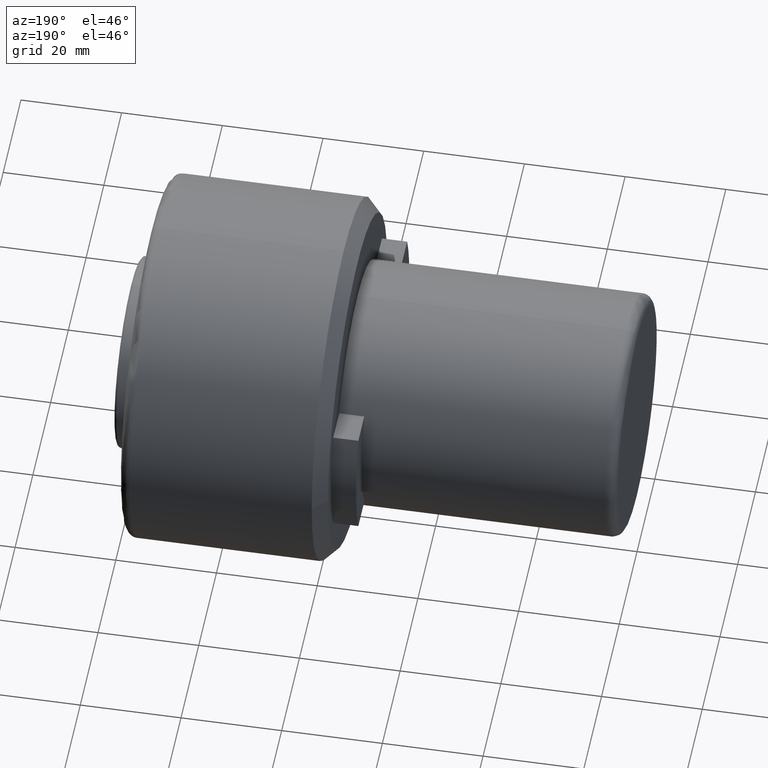
[diagram: clean part render]
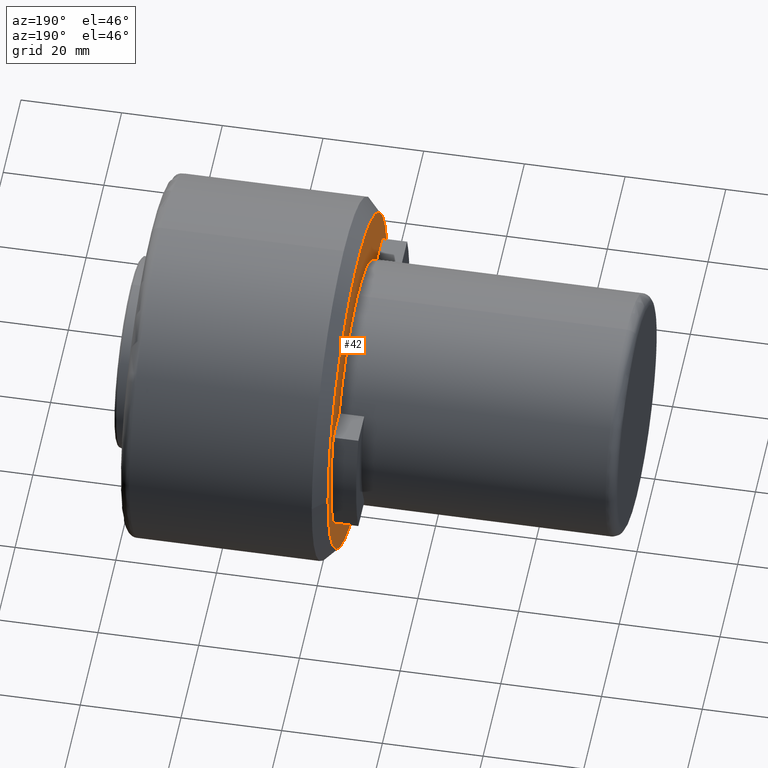
[diagram: same view with one face highlighted and labeled with its STEP entity id]
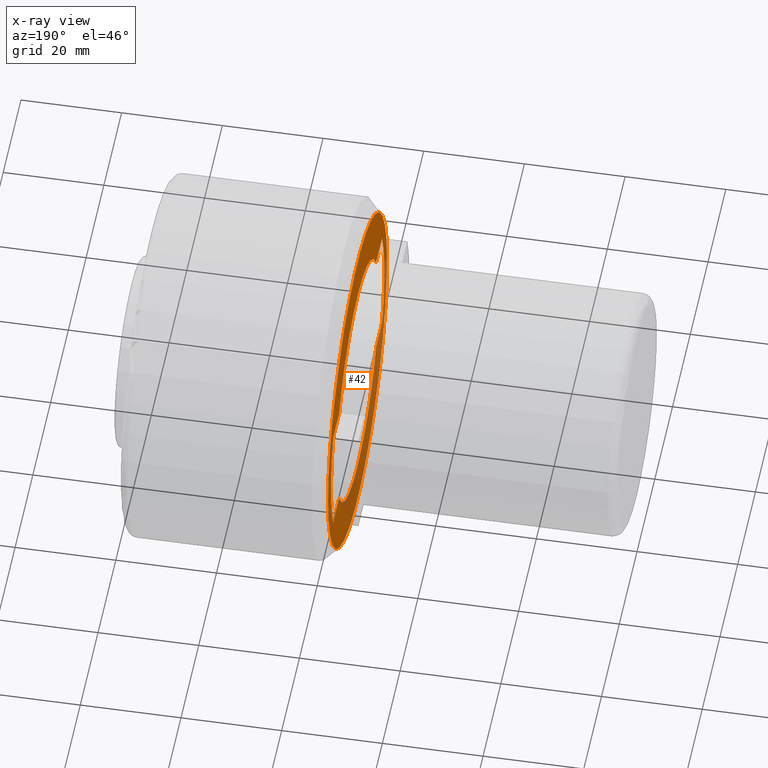
[diagram: x-ray of the same camera — body ghosted, the highlighted face saturated]
A machine part, auxiliary view. The second image highlights one B-rep face of the part: STEP entity #42.
The next image is the same camera in x-ray: the body ghosted, the highlighted face saturated — about 37% of this face is hidden behind the body in this view.
In plain terms, the highlighted planar face has unit normal (1, 0, 0).
Its self-contained STEP definition (entity closure, byte-faithful):
#2 = DIRECTION ( 'NONE',  ( 1.000000000000000000, 9.637352644315590300E-017, -0.0000000000000000000 ) ) ;
#12 = DIRECTION ( 'NONE',  ( 0.0000000000000000000, 1.000000000000000000, 0.0000000000000000000 ) ) ;
#24 = EDGE_CURVE ( 'NONE', #36, #367, #333, .T. ) ;
#36 = VERTEX_POINT ( 'NONE', #759 ) ;
#42 = ADVANCED_FACE ( 'NONE', ( #1199, #1172 ), #464, .F. ) ;
#55 = EDGE_CURVE ( 'NONE', #72, #617, #300, .T. ) ;
#72 = VERTEX_POINT ( 'NONE', #1146 ) ;
#87 = CARTESIAN_POINT ( 'NONE',  ( 55.50000000000000000, 3.677383230559753400E-031, 0.0000000000000000000 ) ) ;
#89 = ORIENTED_EDGE ( 'NONE', *, *, #105, .F. ) ;
#101 = CARTESIAN_POINT ( 'NONE',  ( 55.50000000000000000, -33.64900000000000100, -33.64900000000000100 ) ) ;
#105 = EDGE_CURVE ( 'NONE', #961, #72, #568, .T. ) ;
#153 = AXIS2_PLACEMENT_3D ( 'NONE', #988, #743, #355 ) ;
#154 = CARTESIAN_POINT ( 'NONE',  ( 55.49999999999999300, 0.0000000000000000000, 24.00000000000000400 ) ) ;
#162 = CARTESIAN_POINT ( 'NONE',  ( 55.49999999999999300, -33.24999999999999300, 4.240339542047711600E-015 ) ) ;
#166 = DIRECTION ( 'NONE',  ( -0.0000000000000000000, 1.000000000000000000, 0.0000000000000000000 ) ) ;
#183 = DIRECTION ( 'NONE',  ( 1.000000000000000000, 9.637352644315590300E-017, -0.0000000000000000000 ) ) ;
#186 = ORIENTED_EDGE ( 'NONE', *, *, #741, .F. ) ;
#198 = EDGE_CURVE ( 'NONE', #478, #1397, #779, .T. ) ;
#200 = DIRECTION ( 'NONE',  ( -1.000000000000000000, 0.0000000000000000000, -1.445602896647339200E-016 ) ) ;
#201 = DIRECTION ( 'NONE',  ( 1.000000000000000000, 0.0000000000000000000, 0.0000000000000000000 ) ) ;
#220 = VERTEX_POINT ( 'NONE', #162 ) ;
#222 = CARTESIAN_POINT ( 'NONE',  ( 55.49999999999999300, 27.49545417074602900, 11.99999999783530000 ) ) ;
#232 = CIRCLE ( 'NONE', #1185, 33.24999999999999300 ) ;
#265 = CARTESIAN_POINT ( 'NONE',  ( 55.50000000000000000, -33.64900000000000100, -11.99999999575899600 ) ) ;
#300 = CIRCLE ( 'NONE', #153, 30.00000000000000000 ) ;
#314 = VERTEX_POINT ( 'NONE', #154 ) ;
#316 = LINE ( 'NONE', #1027, #1158 ) ;
#322 = CARTESIAN_POINT ( 'NONE',  ( 55.49999999999999300, 0.0000000000000000000, -7.523163844717393100E-031 ) ) ;
#326 = DIRECTION ( 'NONE',  ( 0.0000000000000000000, 0.0000000000000000000, 1.000000000000000000 ) ) ;
#328 = AXIS2_PLACEMENT_3D ( 'NONE', #101, #201, #1113 ) ;
#333 = CIRCLE ( 'NONE', #438, 24.00000000000000000 ) ;
#336 = ORIENTED_EDGE ( 'NONE', *, *, #712, .F. ) ;
#347 = ORIENTED_EDGE ( 'NONE', *, *, #658, .F. ) ;
#348 = CARTESIAN_POINT ( 'NONE',  ( 55.50000000000000000, -33.64900000000000100, -11.99999999140761600 ) ) ;
#355 = DIRECTION ( 'NONE',  ( 2.312964634635743000E-016, -1.000000000000000000, 0.0000000000000000000 ) ) ;
#367 = VERTEX_POINT ( 'NONE', #893 ) ;
#369 = ORIENTED_EDGE ( 'NONE', *, *, #24, .F. ) ;
#373 = VERTEX_POINT ( 'NONE', #458 ) ;
#386 = VERTEX_POINT ( 'NONE', #1240 ) ;
#394 = LINE ( 'NONE', #265, #654 ) ;
#399 = ORIENTED_EDGE ( 'NONE', *, *, #554, .F. ) ;
#419 = VERTEX_POINT ( 'NONE', #685 ) ;
#432 = DIRECTION ( 'NONE',  ( -1.000000000000000000, 0.0000000000000000000, -1.445602896647339200E-016 ) ) ;
#436 = DIRECTION ( 'NONE',  ( 0.0000000000000000000, 0.0000000000000000000, 1.000000000000000000 ) ) ;
#438 = AXIS2_PLACEMENT_3D ( 'NONE', #485, #1266, #326 ) ;
#452 = DIRECTION ( 'NONE',  ( 2.312964634635743000E-016, -1.000000000000000000, 0.0000000000000000000 ) ) ;
#458 = CARTESIAN_POINT ( 'NONE',  ( 55.50000000000000700, 20.78460969332610700, 11.99999999567060100 ) ) ;
#464 = PLANE ( 'NONE',  #328 ) ;
#477 = DIRECTION ( 'NONE',  ( -0.0000000000000000000, 1.000000000000000000, 0.0000000000000000000 ) ) ;
#478 = VERTEX_POINT ( 'NONE', #222 ) ;
#485 = CARTESIAN_POINT ( 'NONE',  ( 55.50000000000000700, 0.0000000000000000000, 5.015442563508426400E-031 ) ) ;
#499 = EDGE_CURVE ( 'NONE', #731, #220, #990, .T. ) ;
#548 = EDGE_LOOP ( 'NONE', ( #952, #369, #1164, #336, #911, #347, #1017, #399, #186, #825, #89 ) ) ;
#554 = EDGE_CURVE ( 'NONE', #386, #314, #1206, .T. ) ;
#556 = CIRCLE ( 'NONE', #715, 24.00000000000000000 ) ;
#568 = CIRCLE ( 'NONE', #930, 30.00000000000000000 ) ;
#617 = VERTEX_POINT ( 'NONE', #789 ) ;
#621 = AXIS2_PLACEMENT_3D ( 'NONE', #846, #200, #955 ) ;
#654 = VECTOR ( 'NONE', #1131, 1000.000000000000000 ) ;
#658 = EDGE_CURVE ( 'NONE', #373, #478, #972, .T. ) ;
#685 = CARTESIAN_POINT ( 'NONE',  ( 55.50000000000000000, 20.78460969240347500, -11.99999999726865100 ) ) ;
#691 = CIRCLE ( 'NONE', #621, 24.00000000000000000 ) ;
#712 = EDGE_CURVE ( 'NONE', #1397, #419, #394, .T. ) ;
#715 = AXIS2_PLACEMENT_3D ( 'NONE', #322, #1096, #436 ) ;
#731 = VERTEX_POINT ( 'NONE', #810 ) ;
#741 = EDGE_CURVE ( 'NONE', #617, #386, #316, .T. ) ;
#743 = DIRECTION ( 'NONE',  ( -1.000000000000000000, -1.156482317317871700E-016, -0.0000000000000000000 ) ) ;
#754 = VECTOR ( 'NONE', #477, 1000.000000000000000 ) ;
#759 = CARTESIAN_POINT ( 'NONE',  ( 55.50000000000000700, 2.939152317953647900E-015, -24.00000000000000000 ) ) ;
#763 = DIRECTION ( 'NONE',  ( 2.312964634635743000E-016, -1.000000000000000000, 0.0000000000000000000 ) ) ;
#779 = CIRCLE ( 'NONE', #986, 30.00000000000000000 ) ;
#789 = CARTESIAN_POINT ( 'NONE',  ( 55.50000000000000700, -27.49545416980128100, 11.99999999999999800 ) ) ;
#810 = CARTESIAN_POINT ( 'NONE',  ( 55.49999999999999300, 33.24999999999999300, 0.0000000000000000000 ) ) ;
#825 = ORIENTED_EDGE ( 'NONE', *, *, #55, .F. ) ;
#829 = ORIENTED_EDGE ( 'NONE', *, *, #860, .F. ) ;
#830 = CARTESIAN_POINT ( 'NONE',  ( 55.49999999999999300, -2.650271977186816100E-016, 0.0000000000000000000 ) ) ;
#838 = CARTESIAN_POINT ( 'NONE',  ( 55.50000000000000700, -27.49545417167629000, -11.99999999570380800 ) ) ;
#846 = CARTESIAN_POINT ( 'NONE',  ( 55.50000000000000700, 0.0000000000000000000, 5.015442563508426400E-031 ) ) ;
#860 = EDGE_CURVE ( 'NONE', #220, #731, #232, .T. ) ;
#891 = DIRECTION ( 'NONE',  ( 0.0000000000000000000, -1.000000000000000000, -0.0000000000000000000 ) ) ;
#893 = CARTESIAN_POINT ( 'NONE',  ( 55.50000000000000700, -20.78460969578734200, -11.99999999140761600 ) ) ;
#911 = ORIENTED_EDGE ( 'NONE', *, *, #198, .F. ) ;
#920 = AXIS2_PLACEMENT_3D ( 'NONE', #1093, #432, #1193 ) ;
#930 = AXIS2_PLACEMENT_3D ( 'NONE', #1296, #1103, #763 ) ;
#937 = DIRECTION ( 'NONE',  ( 0.0000000000000000000, 1.000000000000000000, 0.0000000000000000000 ) ) ;
#945 = CARTESIAN_POINT ( 'NONE',  ( 55.49999999999999300, -2.650271977186816100E-016, 0.0000000000000000000 ) ) ;
#952 = ORIENTED_EDGE ( 'NONE', *, *, #1395, .F. ) ;
#955 = DIRECTION ( 'NONE',  ( 0.0000000000000000000, 0.0000000000000000000, 1.000000000000000000 ) ) ;
#961 = VERTEX_POINT ( 'NONE', #838 ) ;
#972 = LINE ( 'NONE', #1231, #754 ) ;
#986 = AXIS2_PLACEMENT_3D ( 'NONE', #87, #1155, #452 ) ;
#988 = CARTESIAN_POINT ( 'NONE',  ( 55.50000000000000000, -3.677383230559753800E-031, 0.0000000000000000000 ) ) ;
#990 = CIRCLE ( 'NONE', #1125, 33.24999999999999300 ) ;
#993 = VECTOR ( 'NONE', #891, 1000.000000000000000 ) ;
#997 = EDGE_CURVE ( 'NONE', #419, #36, #691, .T. ) ;
#1017 = ORIENTED_EDGE ( 'NONE', *, *, #1214, .F. ) ;
#1027 = CARTESIAN_POINT ( 'NONE',  ( 55.50000000000000000, -33.64900000000000100, 11.99999999999999600 ) ) ;
#1038 = EDGE_LOOP ( 'NONE', ( #1232, #829 ) ) ;
#1093 = CARTESIAN_POINT ( 'NONE',  ( 55.49999999999999300, 0.0000000000000000000, -7.523163844717393100E-031 ) ) ;
#1096 = DIRECTION ( 'NONE',  ( -1.000000000000000000, 0.0000000000000000000, -1.445602896647339200E-016 ) ) ;
#1103 = DIRECTION ( 'NONE',  ( -1.000000000000000000, -1.156482317317871700E-016, -0.0000000000000000000 ) ) ;
#1113 = DIRECTION ( 'NONE',  ( 0.0000000000000000000, 0.0000000000000000000, -1.000000000000000000 ) ) ;
#1125 = AXIS2_PLACEMENT_3D ( 'NONE', #945, #2, #12 ) ;
#1131 = DIRECTION ( 'NONE',  ( 0.0000000000000000000, -1.000000000000000000, -0.0000000000000000000 ) ) ;
#1146 = CARTESIAN_POINT ( 'NONE',  ( 55.50000000000000700, -30.00000000000000000, 0.0000000000000000000 ) ) ;
#1155 = DIRECTION ( 'NONE',  ( -1.000000000000000000, -1.156482317317871700E-016, -0.0000000000000000000 ) ) ;
#1158 = VECTOR ( 'NONE', #166, 1000.000000000000000 ) ;
#1164 = ORIENTED_EDGE ( 'NONE', *, *, #997, .F. ) ;
#1172 = FACE_BOUND ( 'NONE', #548, .T. ) ;
#1185 = AXIS2_PLACEMENT_3D ( 'NONE', #830, #183, #937 ) ;
#1193 = DIRECTION ( 'NONE',  ( 0.0000000000000000000, 0.0000000000000000000, 1.000000000000000000 ) ) ;
#1199 = FACE_OUTER_BOUND ( 'NONE', #1038, .T. ) ;
#1206 = CIRCLE ( 'NONE', #920, 24.00000000000000000 ) ;
#1210 = CARTESIAN_POINT ( 'NONE',  ( 55.49999999999999300, 27.49545417165220900, -11.99999999787949900 ) ) ;
#1214 = EDGE_CURVE ( 'NONE', #314, #373, #556, .T. ) ;
#1231 = CARTESIAN_POINT ( 'NONE',  ( 55.50000000000000000, -33.64900000000000100, 11.99999999567059900 ) ) ;
#1232 = ORIENTED_EDGE ( 'NONE', *, *, #499, .F. ) ;
#1240 = CARTESIAN_POINT ( 'NONE',  ( 55.49999999999999300, -20.78460969007334200, 12.00000000130456000 ) ) ;
#1266 = DIRECTION ( 'NONE',  ( -1.000000000000000000, 0.0000000000000000000, -1.445602896647339200E-016 ) ) ;
#1279 = LINE ( 'NONE', #348, #993 ) ;
#1296 = CARTESIAN_POINT ( 'NONE',  ( 55.50000000000000000, -3.677383230559753800E-031, 0.0000000000000000000 ) ) ;
#1395 = EDGE_CURVE ( 'NONE', #367, #961, #1279, .T. ) ;
#1397 = VERTEX_POINT ( 'NONE', #1210 ) ;